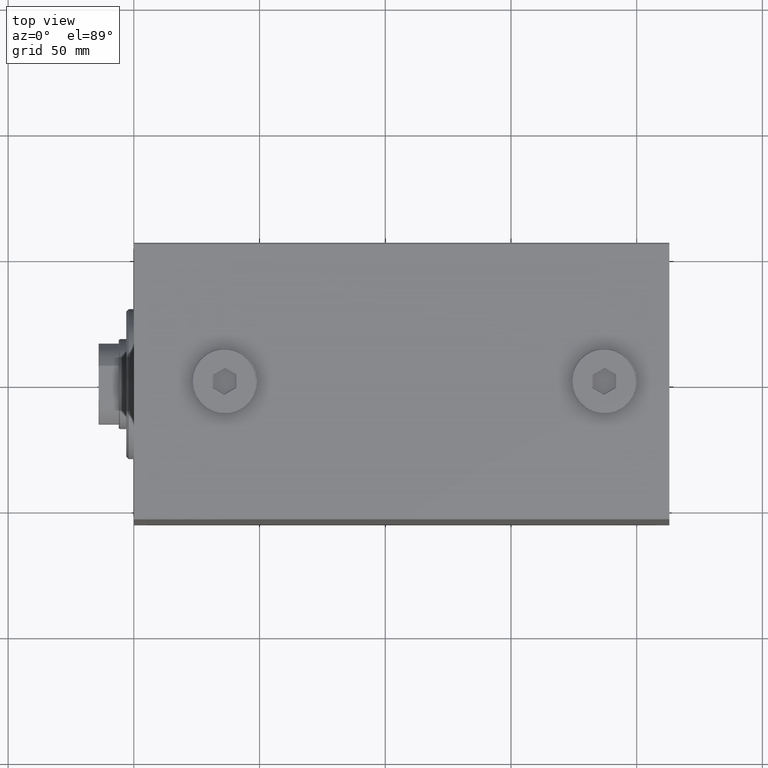
[diagram: clean part render]
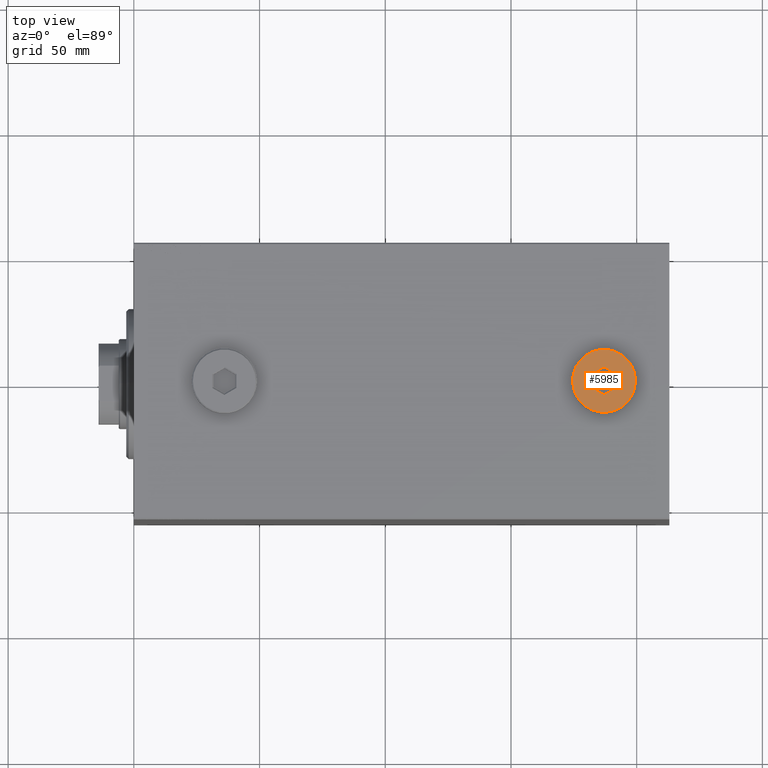
[diagram: same view with one face highlighted and labeled with its STEP entity id]
A machine part, top view. The second image highlights one B-rep face of the part: STEP entity #5985.
In plain terms, the highlighted planar face has unit normal (0, 0, 1).
Its self-contained STEP definition (entity closure, byte-faithful):
#111 = AXIS2_PLACEMENT_3D ( 'NONE', #14084, #16868, #41346 ) ;
#1530 = LINE ( 'NONE', #5449, #28850 ) ;
#2527 = DIRECTION ( 'NONE',  ( -0.8660254037844385966, 0.5000000000000001110, 0.000000000000000000 ) ) ;
#2609 = PLANE ( 'NONE',  #18092 ) ;
#3139 = EDGE_LOOP ( 'NONE', ( #21967, #21518, #23262, #41390, #19527, #39981 ) ) ;
#3344 = LINE ( 'NONE', #6587, #27363 ) ;
#3979 = CARTESIAN_POINT ( 'NONE',  ( -4.833333333333340143, -2.790526301083195104, 5.000000000000000000 ) ) ;
#4482 = CARTESIAN_POINT ( 'NONE',  ( 0.000000000000000000, 0.000000000000000000, 5.000000000000000000 ) ) ;
#5207 = LINE ( 'NONE', #43097, #15390 ) ;
#5438 = DIRECTION ( 'NONE',  ( 0.8660254037844388186, 0.4999999999999997780, 0.000000000000000000 ) ) ;
#5449 = CARTESIAN_POINT ( 'NONE',  ( 0.2500000000000015543, -5.436715034868981888, 5.000000000000000000 ) ) ;
#5751 = VERTEX_POINT ( 'NONE', #8768 ) ;
#5985 = ADVANCED_FACE ( 'NONE', ( #44666, #30818 ), #2609, .T. ) ;
#6587 = CARTESIAN_POINT ( 'NONE',  ( -4.833333333333340143, 2.501851166488380240, 5.000000000000000000 ) ) ;
#8185 = DIRECTION ( 'NONE',  ( 1.000000000000000000, 0.000000000000000000, 0.000000000000000000 ) ) ;
#8223 = CIRCLE ( 'NONE', #111, 12.50000000000001066 ) ;
#8768 = CARTESIAN_POINT ( 'NONE',  ( -12.50000000000001066, 0.000000000000000000, 5.000000000000000000 ) ) ;
#9241 = LINE ( 'NONE', #24487, #23508 ) ;
#11454 = DIRECTION ( 'NONE',  ( 0.8660254037844387076, -0.4999999999999998890, 0.000000000000000000 ) ) ;
#13981 = DIRECTION ( 'NONE',  ( 0.000000000000000000, 1.000000000000000000, 0.000000000000000000 ) ) ;
#14084 = CARTESIAN_POINT ( 'NONE',  ( 0.000000000000000000, 0.000000000000000000, 5.000000000000000000 ) ) ;
#14982 = CARTESIAN_POINT ( 'NONE',  ( 4.833333333333341919, 2.790526301083194216, 5.000000000000000000 ) ) ;
#15390 = VECTOR ( 'NONE', #11454, 1000.000000000000000 ) ;
#16489 = CARTESIAN_POINT ( 'NONE',  ( 0.000000000000000000, 0.000000000000000000, 5.000000000000000000 ) ) ;
#16868 = DIRECTION ( 'NONE',  ( 0.000000000000000000, 0.000000000000000000, 1.000000000000000000 ) ) ;
#17485 = CARTESIAN_POINT ( 'NONE',  ( 4.833333333333341919, -2.501851166488378908, 5.000000000000000000 ) ) ;
#18092 = AXIS2_PLACEMENT_3D ( 'NONE', #16489, #44899, #27354 ) ;
#18355 = DIRECTION ( 'NONE',  ( 0.000000000000000000, 0.000000000000000000, 1.000000000000000000 ) ) ;
#18592 = EDGE_LOOP ( 'NONE', ( #24232, #35818 ) ) ;
#19168 = VERTEX_POINT ( 'NONE', #21801 ) ;
#19527 = ORIENTED_EDGE ( 'NONE', *, *, #39535, .T. ) ;
#20513 = VECTOR ( 'NONE', #39185, 1000.000000000000000 ) ;
#21518 = ORIENTED_EDGE ( 'NONE', *, *, #37718, .T. ) ;
#21801 = CARTESIAN_POINT ( 'NONE',  ( 4.833333333333341919, -2.790526301083194216, 5.000000000000000000 ) ) ;
#21967 = ORIENTED_EDGE ( 'NONE', *, *, #38656, .T. ) ;
#22569 = CARTESIAN_POINT ( 'NONE',  ( -0.2500000000000021094, 5.436715034868981000, 5.000000000000000000 ) ) ;
#23016 = LINE ( 'NONE', #22569, #35443 ) ;
#23262 = ORIENTED_EDGE ( 'NONE', *, *, #27659, .T. ) ;
#23508 = VECTOR ( 'NONE', #2527, 1000.000000000000114 ) ;
#24232 = ORIENTED_EDGE ( 'NONE', *, *, #39643, .T. ) ;
#24487 = CARTESIAN_POINT ( 'NONE',  ( -4.583333333333337478, -2.934863868380603424, 5.000000000000000000 ) ) ;
#24541 = VERTEX_POINT ( 'NONE', #29233 ) ;
#24653 = LINE ( 'NONE', #17485, #20513 ) ;
#26287 = VERTEX_POINT ( 'NONE', #3979 ) ;
#26711 = EDGE_CURVE ( 'NONE', #36965, #19168, #24653, .T. ) ;
#27354 = DIRECTION ( 'NONE',  ( 1.000000000000000000, 0.000000000000000000, -0.000000000000000000 ) ) ;
#27363 = VECTOR ( 'NONE', #13981, 1000.000000000000000 ) ;
#27564 = EDGE_CURVE ( 'NONE', #24541, #26287, #9241, .T. ) ;
#27659 = EDGE_CURVE ( 'NONE', #43993, #36965, #5207, .T. ) ;
#28850 = VECTOR ( 'NONE', #43809, 1000.000000000000000 ) ;
#29233 = CARTESIAN_POINT ( 'NONE',  ( -1.883403334290581714E-15, -5.581052602166390209, 5.000000000000000000 ) ) ;
#30818 = FACE_OUTER_BOUND ( 'NONE', #18592, .T. ) ;
#35443 = VECTOR ( 'NONE', #5438, 1000.000000000000114 ) ;
#35576 = CARTESIAN_POINT ( 'NONE',  ( -4.833333333333340143, 2.790526301083195104, 5.000000000000000000 ) ) ;
#35818 = ORIENTED_EDGE ( 'NONE', *, *, #37256, .T. ) ;
#36015 = CIRCLE ( 'NONE', #41915, 12.50000000000001066 ) ;
#36965 = VERTEX_POINT ( 'NONE', #14982 ) ;
#37256 = EDGE_CURVE ( 'NONE', #40708, #5751, #8223, .T. ) ;
#37718 = EDGE_CURVE ( 'NONE', #38194, #43993, #23016, .T. ) ;
#38194 = VERTEX_POINT ( 'NONE', #35576 ) ;
#38656 = EDGE_CURVE ( 'NONE', #26287, #38194, #3344, .T. ) ;
#39185 = DIRECTION ( 'NONE',  ( 0.000000000000000000, -1.000000000000000000, 0.000000000000000000 ) ) ;
#39535 = EDGE_CURVE ( 'NONE', #19168, #24541, #1530, .T. ) ;
#39643 = EDGE_CURVE ( 'NONE', #5751, #40708, #36015, .T. ) ;
#39981 = ORIENTED_EDGE ( 'NONE', *, *, #27564, .T. ) ;
#40708 = VERTEX_POINT ( 'NONE', #42676 ) ;
#41346 = DIRECTION ( 'NONE',  ( 1.000000000000000000, 0.000000000000000000, 0.000000000000000000 ) ) ;
#41390 = ORIENTED_EDGE ( 'NONE', *, *, #26711, .T. ) ;
#41915 = AXIS2_PLACEMENT_3D ( 'NONE', #4482, #18355, #8185 ) ;
#42676 = CARTESIAN_POINT ( 'NONE',  ( 12.50000000000001066, 1.561424668912876097E-15, 5.000000000000000000 ) ) ;
#43097 = CARTESIAN_POINT ( 'NONE',  ( 4.583333333333339255, 2.934863868380602092, 5.000000000000000000 ) ) ;
#43769 = CARTESIAN_POINT ( 'NONE',  ( 1.144664513637780713E-15, 5.581052602166389320, 5.000000000000000000 ) ) ;
#43809 = DIRECTION ( 'NONE',  ( -0.8660254037844387076, -0.4999999999999998335, 0.000000000000000000 ) ) ;
#43993 = VERTEX_POINT ( 'NONE', #43769 ) ;
#44666 = FACE_BOUND ( 'NONE', #3139, .T. ) ;
#44899 = DIRECTION ( 'NONE',  ( 0.000000000000000000, 0.000000000000000000, 1.000000000000000000 ) ) ;